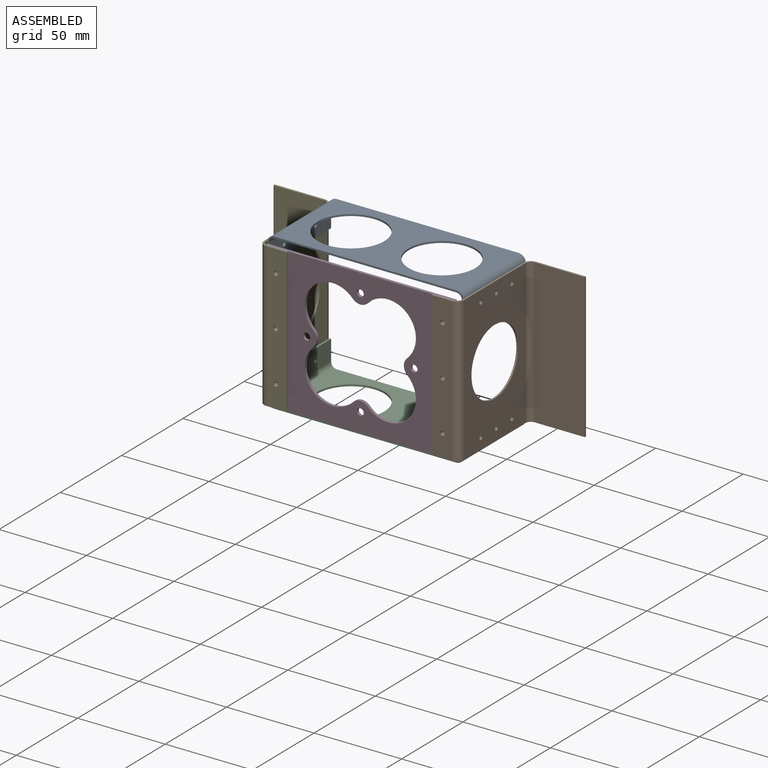
[diagram: assembled view]
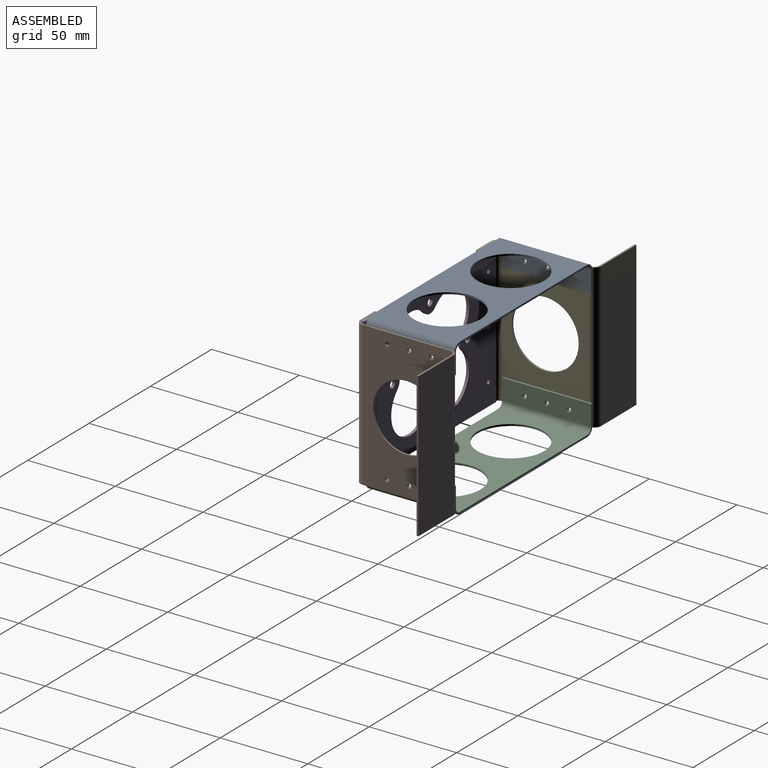
[diagram: assembled view, second angle]
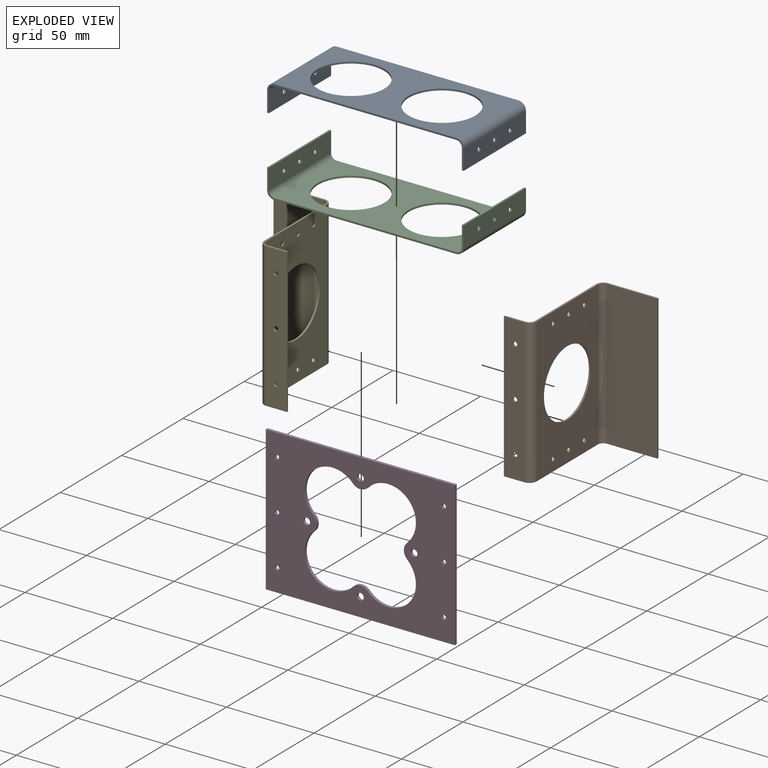
[diagram: exploded view]
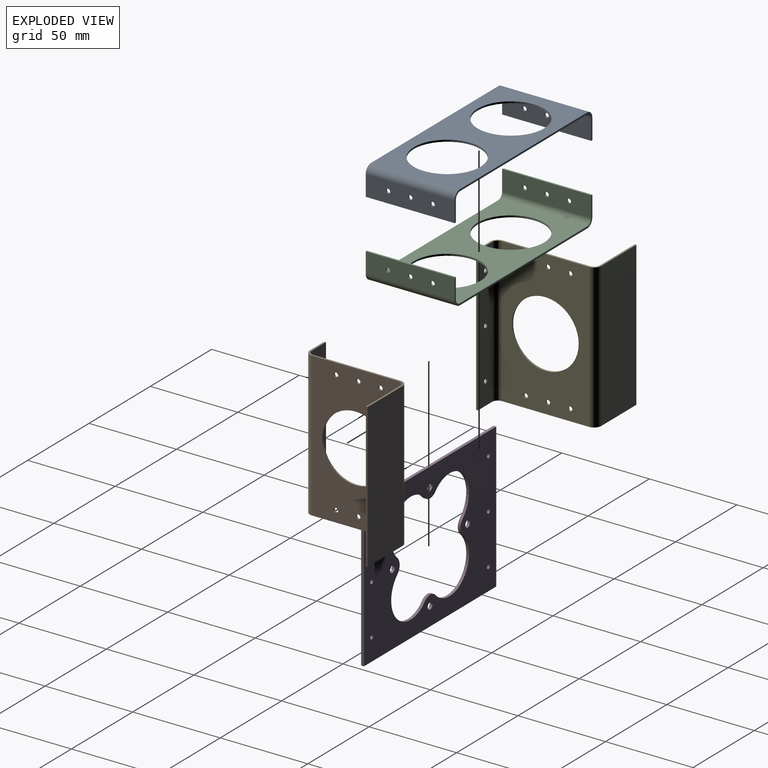
[diagram: exploded view, second angle]
ASSEMBLY  parts=5 mates=4
PART A: 22 faces, bbox 112.3x15.9x50.8 mm
  f0: plane 50.8x1.02mm, normal (0,1,0), area 51.6mm2, adj f1,f11,f12,f13
  f1: plane 50.8x11.68mm, normal (-1,0,0), area 578.9mm2, adj f0,f2,f12,f13,f14,f15,f16
  f2: cylinder r=4.19mm len=50.8mm, axis (0,0,-1), area 334.4mm2, adj f1,f3,f12,f13
  f3: plane 103.89x50.8mm, normal (0,-1,0), area 2997.2mm2, adj f2,f4,f12,f13,f20,f21
  f4: cylinder r=4.19mm len=50.8mm, axis (0,0,-1), area 334.4mm2, adj f3,f5,f12,f13
  f5: plane 50.8x11.68mm, normal (1,0,0), area 578.9mm2, adj f4,f6,f12,f13,f17,f18,f19
  f6: plane 50.8x1.02mm, normal (0,1,0), area 51.6mm2, adj f5,f7,f12,f13
  f7: plane 50.8x11.68mm, normal (-1,0,0), area 578.9mm2, adj f6,f8,f12,f13,f17,f18,f19
  f8: cylinder r=3.17mm len=50.8mm, axis (0,0,-1), area 253.4mm2, adj f7,f9,f12,f13
  f9: plane 103.89x50.8mm, normal (0,1,0), area 2997.2mm2, adj f8,f10,f12,f13,f20,f21
  f10: cylinder r=3.17mm len=50.8mm, axis (0,0,-1), area 253.4mm2, adj f9,f11,f12,f13
  f11: plane 50.8x11.68mm, normal (1,0,0), area 578.9mm2, adj f0,f10,f12,f13,f14,f15,f16
  f12: plane 112.27x15.88mm, normal (0,0,1), area 141mm2, adj f0,f1,f2,f3,f4,f5,f6,f7
  f13: plane 112.27x15.88mm, normal (0,0,-1), area 141mm2, adj f0,f1,f2,f3,f4,f5,f6,f7
  f14: cylinder r=1.24mm len=2.49mm, axis (-1,0,0), area 7.9mm2, adj f1,f11
  f15: cylinder r=1.24mm len=2.49mm, axis (-1,0,0), area 7.9mm2, adj f1,f11
  f16: cylinder r=1.24mm len=2.49mm, axis (-1,0,0), area 7.9mm2, adj f1,f11
  f17: cylinder r=1.24mm len=2.49mm, axis (-1,0,0), area 7.9mm2, adj f5,f7
  f18: cylinder r=1.24mm len=2.49mm, axis (-1,0,0), area 7.9mm2, adj f5,f7
  f19: cylinder r=1.24mm len=2.49mm, axis (-1,0,0), area 7.9mm2, adj f5,f7
  f20: cylinder r=19.05mm len=38.1mm, axis (0,-1,0), area 121.6mm2, adj f3,f9
  f21: cylinder r=19.05mm len=38.1mm, axis (0,-1,0), area 121.6mm2, adj f3,f9
PART B: 24 faces, bbox 47.6x58.2x82.6 mm
  f0: cylinder r=4.19mm len=82.55mm, axis (0,0,-1), area 543.4mm2, adj f1,f11,f12,f13
  f1: plane 82.55x11.68mm, normal (0,-1,0), area 949.9mm2, adj f0,f2,f12,f13,f14,f15,f16
  f2: plane 82.55x1.02mm, normal (1,0,0), area 83.9mm2, adj f1,f3,f12,f13
  f3: plane 82.55x11.68mm, normal (0,1,0), area 949.9mm2, adj f2,f4,f12,f13,f14,f15,f16
  f4: cylinder r=3.17mm len=82.55mm, axis (0,0,-1), area 411.7mm2, adj f3,f5,f12,f13
  f5: plane 82.55x49.78mm, normal (1,0,0), area 2940.4mm2, adj f4,f6,f12,f13,f17,f18,f19,f20
  f6: cylinder r=4.19mm len=82.55mm, axis (0,0,-1), area 543.4mm2, adj f5,f7,f12,f13
  f7: plane 82.55x28.58mm, normal (0,1,0), area 2358.9mm2, adj f6,f8,f12,f13
  f8: plane 82.55x1.02mm, normal (-1,0,0), area 83.9mm2, adj f7,f9,f12,f13
  f9: plane 82.55x28.58mm, normal (0,-1,0), area 2358.9mm2, adj f8,f10,f12,f13
  f10: cylinder r=3.17mm len=82.55mm, axis (0,0,-1), area 411.7mm2, adj f9,f11,f12,f13
  f11: plane 82.55x49.78mm, normal (-1,0,0), area 2940.4mm2, adj f0,f10,f12,f13,f17,f18,f19,f20
  f12: plane 58.17x47.63mm, normal (0,0,1), area 103.2mm2, adj f0,f1,f2,f3,f4,f5,f6,f7
  f13: plane 58.17x47.63mm, normal (0,0,-1), area 103.2mm2, adj f0,f1,f2,f3,f4,f5,f6,f7
  f14: cylinder r=1.24mm len=2.49mm, axis (0,-1,0), area 7.9mm2, adj f1,f3
  f15: cylinder r=1.24mm len=2.49mm, axis (0,-1,0), area 7.9mm2, adj f1,f3
  f16: cylinder r=1.24mm len=2.49mm, axis (0,-1,0), area 7.9mm2, adj f1,f3
  f17: cylinder r=1.24mm len=2.49mm, axis (1,0,0), area 7.9mm2, adj f5,f11
  f18: cylinder r=1.24mm len=2.49mm, axis (1,0,0), area 7.9mm2, adj f5,f11
  f19: cylinder r=1.24mm len=2.49mm, axis (1,0,0), area 7.9mm2, adj f5,f11
  f20: cylinder r=1.24mm len=2.49mm, axis (1,0,0), area 7.9mm2, adj f5,f11
  f21: cylinder r=1.24mm len=2.49mm, axis (1,0,0), area 7.9mm2, adj f5,f11
  f22: cylinder r=1.24mm len=2.49mm, axis (1,0,0), area 7.9mm2, adj f5,f11
  f23: cylinder r=19.05mm len=38.1mm, axis (-1,0,0), area 121.6mm2, adj f5,f11
PART C: same geometry as A
PART D: 24 faces, bbox 108x1.6x82.6 mm
  f0: plane 107.95x1.6mm, normal (0,0,-1), area 172.7mm2, adj f1,f11,f12,f13
  f1: plane 82.55x1.6mm, normal (1,0,0), area 132.1mm2, adj f0,f2,f12,f13
  f2: plane 107.95x1.6mm, normal (0,0,1), area 172.7mm2, adj f1,f11,f12,f13
  f3: cylinder r=15.88mm len=27.49mm, axis (0,1,0), area 81.6mm2, adj f4,f10,f12,f13
  f4: cylinder r=5.83mm len=8.52mm, axis (0,1,0), area 15.3mm2, adj f3,f5,f12,f13
  f5: cylinder r=15.88mm len=27.49mm, axis (0,1,0), area 81.6mm2, adj f4,f6,f12,f13
  f6: cylinder r=5.83mm len=8.52mm, axis (0,1,0), area 15.3mm2, adj f5,f7,f12,f13
  f7: cylinder r=15.88mm len=27.49mm, axis (0,1,0), area 81.6mm2, adj f6,f8,f12,f13
  f8: cylinder r=5.82mm len=8.51mm, axis (0,1,0), area 15.3mm2, adj f7,f9,f12,f13
  f9: cylinder r=15.88mm len=27.49mm, axis (0,1,0), area 81.6mm2, adj f8,f10,f12,f13
  f10: cylinder r=5.83mm len=8.52mm, axis (0,1,0), area 15.3mm2, adj f3,f9,f12,f13
  f11: plane 82.55x1.6mm, normal (-1,0,0), area 132.1mm2, adj f0,f2,f12,f13
  f12: plane 107.95x82.55mm, normal (0,-1,0), area 5378.9mm2, adj f0,f1,f2,f3,f4,f5,f6,f7
  f13: plane 107.95x82.55mm, normal (0,1,0), area 5378.9mm2, adj f0,f1,f2,f3,f4,f5,f6,f7
  f14: cylinder r=1.96mm len=3.91mm, axis (0,1,0), area 19.7mm2, adj f12,f13
  f15: cylinder r=1.96mm len=3.91mm, axis (0,1,0), area 19.7mm2, adj f12,f13
  f16: cylinder r=1.96mm len=3.91mm, axis (0,1,0), area 19.7mm2, adj f12,f13
  f17: cylinder r=1.96mm len=3.91mm, axis (0,1,0), area 19.7mm2, adj f12,f13
  f18: cylinder r=1.24mm len=2.49mm, axis (0,1,0), area 12.5mm2, adj f12,f13
  f19: cylinder r=1.24mm len=2.49mm, axis (0,1,0), area 12.5mm2, adj f12,f13
  f20: cylinder r=1.24mm len=2.49mm, axis (0,1,0), area 12.5mm2, adj f12,f13
  f21: cylinder r=1.24mm len=2.49mm, axis (0,1,0), area 12.5mm2, adj f12,f13
  f22: cylinder r=1.24mm len=2.49mm, axis (0,1,0), area 12.5mm2, adj f12,f13
  f23: cylinder r=1.24mm len=2.49mm, axis (0,1,0), area 12.5mm2, adj f12,f13
PART E: same geometry as B
PLACE A rot(axis=(-1,0,0),90deg) t=(43.24,16.03,83.74)mm
PLACE B rot(axis=(0,-1,0),180deg) t=(105.22,41.43,80.56)mm
PLACE C rot(axis=(1,0,0),90deg) t=(43.24,66.83,-5.16)mm
PLACE D t=(48.07,13.51,39.29)mm
PLACE E t=(-9.08,41.43,-1.99)mm
MATE fastened A.f14 <-> E.f21  axis (-1,0,0) through (-8.06,28.73,74.21)mm
MATE fastened C.f16 <-> B.f21  axis (1,0,0) through (104.2,28.73,4.36)mm
MATE fastened D.f23 <-> B.f14  axis (0,-1,0) through (95.7,11.91,67.86)mm
MATE fastened D.f18 <-> E.f16  axis (0,-1,0) through (0.45,11.91,67.86)mm
